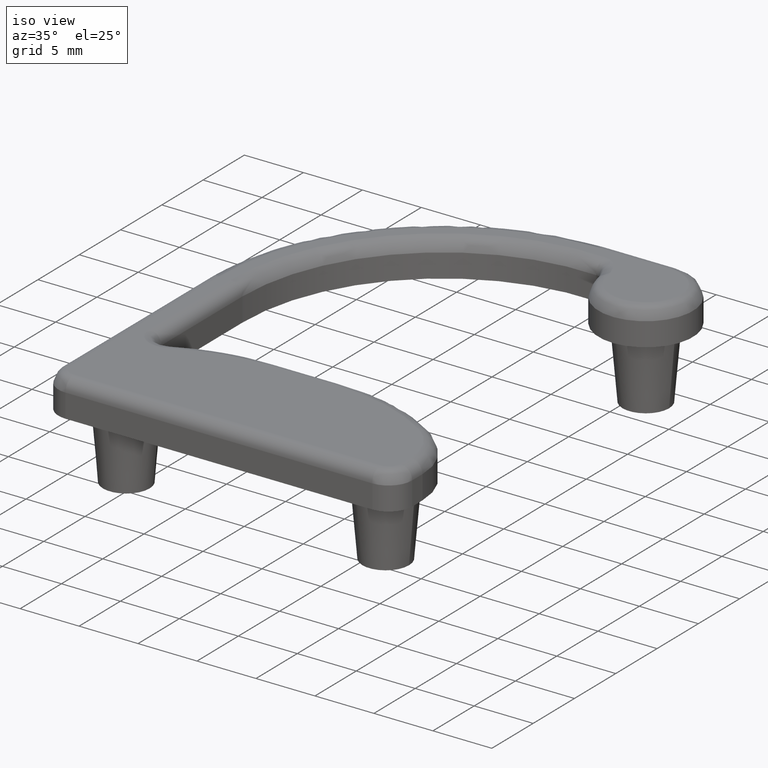
[diagram: clean part render]
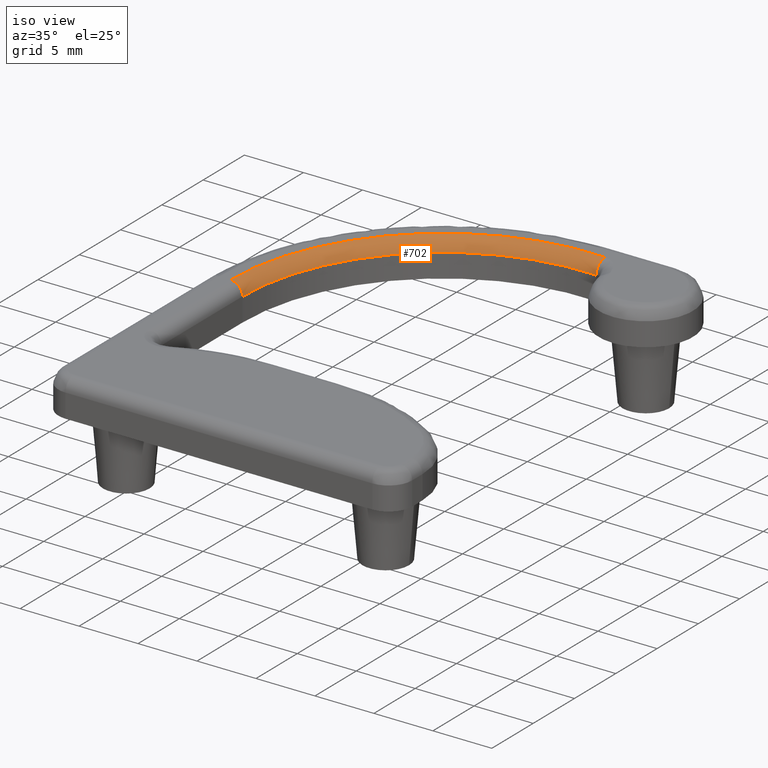
[diagram: same view with one face highlighted and labeled with its STEP entity id]
A machine part, iso view. The second image highlights one B-rep face of the part: STEP entity #702.
In plain terms, the highlighted face is a freeform B-spline surface patch.
Its self-contained STEP definition (entity closure, byte-faithful):
#49=B_SPLINE_SURFACE_WITH_KNOTS('',3,3,((#1807,#1808,#1809,#1810,#1811,
#1812,#1813,#1814,#1815,#1816,#1817),(#1818,#1819,#1820,#1821,#1822,#1823,
#1824,#1825,#1826,#1827,#1828),(#1829,#1830,#1831,#1832,#1833,#1834,#1835,
#1836,#1837,#1838,#1839),(#1840,#1841,#1842,#1843,#1844,#1845,#1846,#1847,
#1848,#1849,#1850),(#1851,#1852,#1853,#1854,#1855,#1856,#1857,#1858,#1859,
#1860,#1861),(#1862,#1863,#1864,#1865,#1866,#1867,#1868,#1869,#1870,#1871,
#1872),(#1873,#1874,#1875,#1876,#1877,#1878,#1879,#1880,#1881,#1882,#1883)),
 .UNSPECIFIED.,.F.,.F.,.F.,(4,1,1,1,4),(4,1,1,1,1,1,1,1,4),(0.,0.390180644032257,
0.780361288064513,1.17054193209677,1.56072257612903),(0.,3.55234367210826,
7.10468734421652,10.6570310163248,14.209374688433,17.7617183605413,21.3140620326496,
24.8664057047578,28.4187493768661),.UNSPECIFIED.);
#96=FACE_OUTER_BOUND('',#147,.T.);
#147=EDGE_LOOP('',(#622,#623,#624,#625));
#192=CIRCLE('',#743,18.);
#201=CIRCLE('',#757,17.);
#219=CIRCLE('',#791,1.00000000000007);
#220=CIRCLE('',#792,1.);
#330=VERTEX_POINT('',#1251);
#331=VERTEX_POINT('',#1253);
#343=VERTEX_POINT('',#1286);
#344=VERTEX_POINT('',#1290);
#396=EDGE_CURVE('',#331,#330,#192,.T.);
#416=EDGE_CURVE('',#344,#343,#201,.T.);
#449=EDGE_CURVE('',#344,#331,#219,.T.);
#450=EDGE_CURVE('',#343,#330,#220,.T.);
#622=ORIENTED_EDGE('',*,*,#449,.T.);
#623=ORIENTED_EDGE('',*,*,#396,.T.);
#624=ORIENTED_EDGE('',*,*,#450,.F.);
#625=ORIENTED_EDGE('',*,*,#416,.F.);
#702=ADVANCED_FACE('',(#96),#49,.T.);
#743=AXIS2_PLACEMENT_3D('',#1254,#875,#876);
#757=AXIS2_PLACEMENT_3D('',#1292,#914,#915);
#791=AXIS2_PLACEMENT_3D('',#1806,#997,#998);
#792=AXIS2_PLACEMENT_3D('',#1884,#999,#1000);
#875=DIRECTION('center_axis',(0.,0.,1.));
#876=DIRECTION('ref_axis',(-1.,0.,0.));
#914=DIRECTION('center_axis',(0.,0.,1.));
#915=DIRECTION('ref_axis',(-1.,0.,0.));
#997=DIRECTION('center_axis',(-0.997850862238854,0.065526000405756,-5.672125E-14));
#998=DIRECTION('ref_axis',(-0.065526000405756,-0.997850862238854,-3.724722E-15));
#999=DIRECTION('center_axis',(0.,-1.,0.));
#1000=DIRECTION('ref_axis',(1.,0.,0.));
#1251=CARTESIAN_POINT('',(-2.00000043954512,15.4979460858721,2.99999999999989));
#1253=CARTESIAN_POINT('',(17.1794675677586,33.4592616061712,3.00000000000098));
#1254=CARTESIAN_POINT('Origin',(15.9999995604549,15.4979460858719,3.00000000000091));
#1286=CARTESIAN_POINT('',(-1.00000043954506,15.4979460858721,1.99999999999994));
#1290=CARTESIAN_POINT('',(17.1139415673529,32.4614107439325,2.00000000000097));
#1292=CARTESIAN_POINT('Origin',(15.9999995604549,15.4979460858719,2.00000000000091));
#1806=CARTESIAN_POINT('Origin',(17.1794675677586,33.4592616061714,2.00000000000098));
#1807=CARTESIAN_POINT('Ctrl Pts',(17.1139415673529,32.4614107439325,2.00000000000097));
#1808=CARTESIAN_POINT('Ctrl Pts',(15.9593529448421,32.5372292629217,2.00000000000091));
#1809=CARTESIAN_POINT('Ctrl Pts',(13.6276441307744,32.4519176383497,2.00000000000077));
#1810=CARTESIAN_POINT('Ctrl Pts',(10.2345340472246,31.6167143696161,2.00000000000058));
#1811=CARTESIAN_POINT('Ctrl Pts',(7.08032134886296,30.1095690899351,2.0000000000004));
#1812=CARTESIAN_POINT('Ctrl Pts',(4.29839875713909,27.9931599240673,2.00000000000025));
#1813=CARTESIAN_POINT('Ctrl Pts',(2.00424978525358,25.3558958950952,2.00000000000011));
#1814=CARTESIAN_POINT('Ctrl Pts',(0.293660625851944,22.3072192365583,2.00000000000002));
#1815=CARTESIAN_POINT('Ctrl Pts',(-0.762084608710076,18.9761289437427,1.99999999999996));
#1816=CARTESIAN_POINT('Ctrl Pts',(-1.00000043954506,16.6550214226816,1.99999999999994));
#1817=CARTESIAN_POINT('Ctrl Pts',(-1.00000043954507,15.4979460858721,1.99999999999994));
#1818=CARTESIAN_POINT('Ctrl Pts',(17.1139415673528,32.4614107439325,2.13006021467839));
#1819=CARTESIAN_POINT('Ctrl Pts',(15.9593529448421,32.5372292629217,2.13006021467833));
#1820=CARTESIAN_POINT('Ctrl Pts',(13.6276441307743,32.4519176383497,2.13006021467819));
#1821=CARTESIAN_POINT('Ctrl Pts',(10.2345340472246,31.6167143696161,2.130060214678));
#1822=CARTESIAN_POINT('Ctrl Pts',(7.08032134886295,30.1095690899351,2.13006021467782));
#1823=CARTESIAN_POINT('Ctrl Pts',(4.29839875713908,27.9931599240673,2.13006021467766));
#1824=CARTESIAN_POINT('Ctrl Pts',(2.00424978525357,25.3558958950952,2.13006021467753));
#1825=CARTESIAN_POINT('Ctrl Pts',(0.293660625851937,22.3072192365583,2.13006021467744));
#1826=CARTESIAN_POINT('Ctrl Pts',(-0.762084608710083,18.9761289437427,2.13006021467738));
#1827=CARTESIAN_POINT('Ctrl Pts',(-1.00000043954506,16.6550214226816,2.13006021467736));
#1828=CARTESIAN_POINT('Ctrl Pts',(-1.00000043954507,15.4979460858721,2.13006021467736));
#1829=CARTESIAN_POINT('Ctrl Pts',(17.1173514602177,32.5133376815495,2.39302781734425));
#1830=CARTESIAN_POINT('Ctrl Pts',(15.9592285213051,32.5893882889467,2.39302781734418));
#1831=CARTESIAN_POINT('Ctrl Pts',(13.6203821029466,32.5038155165786,2.39302781734405));
#1832=CARTESIAN_POINT('Ctrl Pts',(10.2168853549278,31.6660556033796,2.39302781734386));
#1833=CARTESIAN_POINT('Ctrl Pts',(7.05301728195248,30.1542967945348,2.39302781734367));
#1834=CARTESIAN_POINT('Ctrl Pts',(4.2625789345273,28.0314090790934,2.39302781734352));
#1835=CARTESIAN_POINT('Ctrl Pts',(1.96140733295213,25.3860721093942,2.39302781734339));
#1836=CARTESIAN_POINT('Ctrl Pts',(0.245581881415666,22.3280631330877,2.39302781734329));
#1837=CARTESIAN_POINT('Ctrl Pts',(-0.813395099610864,18.9867760248622,2.39302781734323));
#1838=CARTESIAN_POINT('Ctrl Pts',(-1.05203921566086,16.6585633511758,2.39302781734322));
#1839=CARTESIAN_POINT('Ctrl Pts',(-1.05203921566087,15.4979460858721,2.39302781734322));
#1840=CARTESIAN_POINT('Ctrl Pts',(17.1319341610271,32.7354077069788,2.72541291147392));
#1841=CARTESIAN_POINT('Ctrl Pts',(15.9586964133221,32.8124508604614,2.72541291147385));
#1842=CARTESIAN_POINT('Ctrl Pts',(13.5893254148692,32.7257612670299,2.72541291147372));
#1843=CARTESIAN_POINT('Ctrl Pts',(10.1414092007963,31.8770676433617,2.72541291147353));
#1844=CARTESIAN_POINT('Ctrl Pts',(6.93624908587943,30.345578679308,2.72541291147334));
#1845=CARTESIAN_POINT('Ctrl Pts',(4.10939237503973,28.194984888088,2.72541291147318));
#1846=CARTESIAN_POINT('Ctrl Pts',(1.77818789216379,25.515123291387,2.72541291147305));
#1847=CARTESIAN_POINT('Ctrl Pts',(0.03996898588298,22.4172038535837,2.72541291147295));
#1848=CARTESIAN_POINT('Ctrl Pts',(-1.03282883751344,19.0323091851726,2.72541291147289));
#1849=CARTESIAN_POINT('Ctrl Pts',(-1.27458752807215,16.673710713737,2.72541291147287));
#1850=CARTESIAN_POINT('Ctrl Pts',(-1.27458752807216,15.4979460858721,2.72541291147288));
#1851=CARTESIAN_POINT('Ctrl Pts',(17.1537140268398,33.0670784597515,2.9479612238852));
#1852=CARTESIAN_POINT('Ctrl Pts',(15.9579016880776,33.145604021797,2.94796122388513));
#1853=CARTESIAN_POINT('Ctrl Pts',(13.5429409688219,33.0572464099913,2.94796122388499));
#1854=CARTESIAN_POINT('Ctrl Pts',(10.028682448013,32.1922228382586,2.94796122388479));
#1855=CARTESIAN_POINT('Ctrl Pts',(6.76185096341081,30.6312660726958,2.94796122388461));
#1856=CARTESIAN_POINT('Ctrl Pts',(3.8806019230116,28.4392921132515,2.94796122388444));
#1857=CARTESIAN_POINT('Ctrl Pts',(1.50454209178462,25.7078665605202,2.94796122388431));
#1858=CARTESIAN_POINT('Ctrl Pts',(-0.267122363835299,22.5503392004746,2.94796122388421));
#1859=CARTESIAN_POINT('Ctrl Pts',(-1.36056218600624,19.1003148402675,2.94796122388414));
#1860=CARTESIAN_POINT('Ctrl Pts',(-1.60697262220184,16.6963339251923,2.94796122388413));
#1861=CARTESIAN_POINT('Ctrl Pts',(-1.60697262220184,15.4979460858721,2.94796122388413));
#1862=CARTESIAN_POINT('Ctrl Pts',(17.1709452420788,33.3294809088125,3.00000000000098));
#1863=CARTESIAN_POINT('Ctrl Pts',(15.9572729384856,33.4091792834566,3.00000000000091));
#1864=CARTESIAN_POINT('Ctrl Pts',(13.5062437558799,33.319502013216,3.00000000000077));
#1865=CARTESIAN_POINT('Ctrl Pts',(9.93949829246784,32.4415589472881,3.00000000000057));
#1866=CARTESIAN_POINT('Ctrl Pts',(6.6238752930665,30.8572886298979,3.00000000000038));
#1867=CARTESIAN_POINT('Ctrl Pts',(3.6995935753292,28.6325766090061,3.00000000000021));
#1868=CARTESIAN_POINT('Ctrl Pts',(1.28804628202603,25.8603560563162,3.00000000000007));
#1869=CARTESIAN_POINT('Ctrl Pts',(-0.5100787342053,22.6556696849648,2.99999999999997));
#1870=CARTESIAN_POINT('Ctrl Pts',(-1.61984954422087,19.1541177466068,2.99999999999991));
#1871=CARTESIAN_POINT('Ctrl Pts',(-1.8699402248677,16.7142323562173,2.99999999999989));
#1872=CARTESIAN_POINT('Ctrl Pts',(-1.8699402248677,15.4979460858721,2.99999999999989));
#1873=CARTESIAN_POINT('Ctrl Pts',(17.1794675677586,33.4592616061713,3.00000000000098));
#1874=CARTESIAN_POINT('Ctrl Pts',(15.9569619674531,33.5395400380423,3.00000000000091));
#1875=CARTESIAN_POINT('Ctrl Pts',(13.4880938113813,33.449210082613,3.00000000000077));
#1876=CARTESIAN_POINT('Ctrl Pts',(9.89538901703455,32.5648772098363,3.00000000000056));
#1877=CARTESIAN_POINT('Ctrl Pts',(6.55563439523984,30.9690763254682,3.00000000000037));
#1878=CARTESIAN_POINT('Ctrl Pts',(3.61006929812045,28.7281725027846,3.00000000000021));
#1879=CARTESIAN_POINT('Ctrl Pts',(1.18097038671226,25.9357752956378,3.00000000000007));
#1880=CARTESIAN_POINT('Ctrl Pts',(-0.630241664418874,22.7077647160104,2.99999999999996));
#1881=CARTESIAN_POINT('Ctrl Pts',(-1.74808955983749,19.1807279353822,2.9999999999999));
#1882=CARTESIAN_POINT('Ctrl Pts',(-2.00000043954512,16.7230846777881,2.99999999999989));
#1883=CARTESIAN_POINT('Ctrl Pts',(-2.00000043954512,15.4979460858721,2.99999999999989));
#1884=CARTESIAN_POINT('Origin',(-2.00000043954506,15.4979460858721,1.99999999999989));